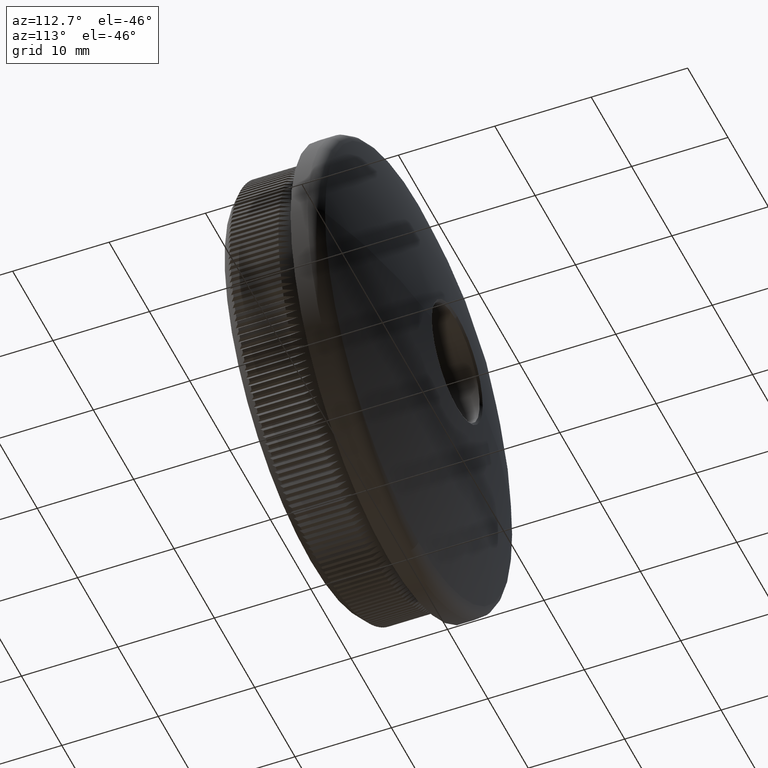
[diagram: clean part render]
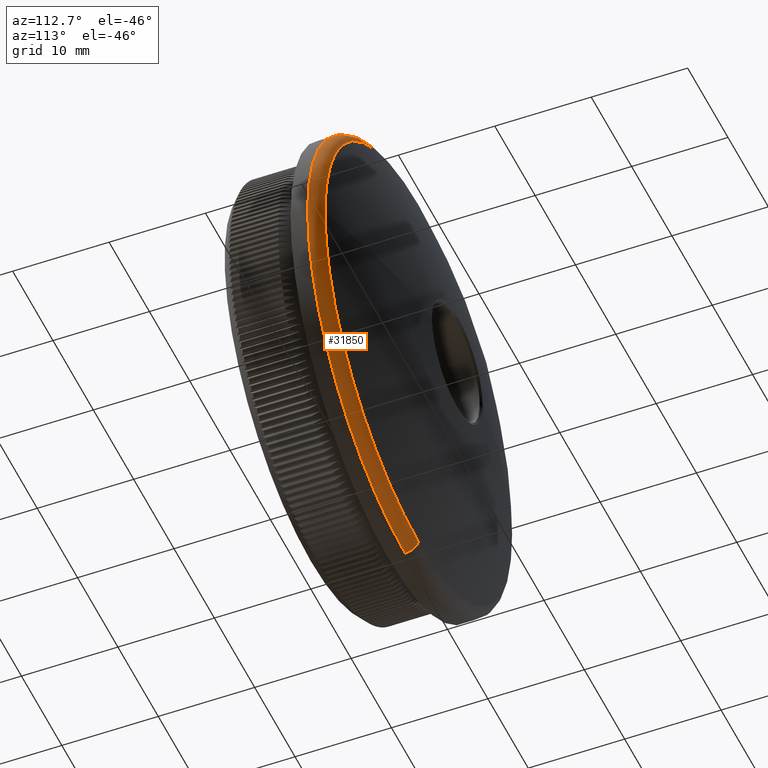
[diagram: same view with one face highlighted and labeled with its STEP entity id]
A machine part, auxiliary view. The second image highlights one B-rep face of the part: STEP entity #31850.
In plain terms, the highlighted toroidal blend (fillet) surface has major radius 22.65 mm and minor (blend) radius 1.5 mm.
Its self-contained STEP definition (entity closure, byte-faithful):
#22 = DIRECTION ( 'NONE',  ( 1.000000000000000000, 0.0000000000000000000, -1.224646799147353200E-016 ) ) ;
#752 = DIRECTION ( 'NONE',  ( 0.0000000000000000000, 0.0000000000000000000, -1.000000000000000000 ) ) ;
#1697 = CIRCLE ( 'NONE', #20802, 24.15000000000000200 ) ;
#1708 = CARTESIAN_POINT ( 'NONE',  ( 0.0000000000000000000, 11.17937736945556700, -23.19018648117216600 ) ) ;
#1823 = DIRECTION ( 'NONE',  ( 0.0000000000000000000, 0.0000000000000000000, -1.000000000000000000 ) ) ;
#1839 = CARTESIAN_POINT ( 'NONE',  ( 2.957522019940858300E-015, 9.780020886796899400, 24.15000000000000200 ) ) ;
#3131 = DIRECTION ( 'NONE',  ( -0.0000000000000000000, -1.000000000000000000, -0.0000000000000000000 ) ) ;
#3533 = CARTESIAN_POINT ( 'NONE',  ( 2.898750392260314800E-015, 11.17937736945556700, 23.19018648117216600 ) ) ;
#3653 = EDGE_CURVE ( 'NONE', #31719, #30174, #6099, .T. ) ;
#3811 = EDGE_CURVE ( 'NONE', #29290, #31719, #21934, .T. ) ;
#5849 = CARTESIAN_POINT ( 'NONE',  ( 0.0000000000000000000, 11.17937736945556700, 0.0000000000000000000 ) ) ;
#6099 = CIRCLE ( 'NONE', #24044, 1.500000000000001300 ) ;
#7274 = DIRECTION ( 'NONE',  ( -1.000000000000000000, 0.0000000000000000000, 0.0000000000000000000 ) ) ;
#7820 = EDGE_CURVE ( 'NONE', #19731, #29290, #30881, .T. ) ;
#8286 = VERTEX_POINT ( 'NONE', #1839 ) ;
#8506 = CARTESIAN_POINT ( 'NONE',  ( 0.0000000000000000000, 9.780020886796899400, 0.0000000000000000000 ) ) ;
#9870 = CIRCLE ( 'NONE', #11204, 1.500000000000001300 ) ;
#10790 = ORIENTED_EDGE ( 'NONE', *, *, #3653, .F. ) ;
#10814 = EDGE_CURVE ( 'NONE', #30174, #8286, #1697, .T. ) ;
#10952 = DIRECTION ( 'NONE',  ( 0.0000000000000000000, 0.0000000000000000000, -1.000000000000000000 ) ) ;
#11204 = AXIS2_PLACEMENT_3D ( 'NONE', #26601, #22, #13273 ) ;
#13273 = DIRECTION ( 'NONE',  ( -1.224646799147352000E-016, 0.0000000000000000000, -1.000000000000000000 ) ) ;
#14809 = DIRECTION ( 'NONE',  ( 0.0000000000000000000, 1.000000000000000000, 0.0000000000000000000 ) ) ;
#16680 = CARTESIAN_POINT ( 'NONE',  ( 0.0000000000000000000, 9.780020886796899400, -24.15000000000000200 ) ) ;
#17380 = AXIS2_PLACEMENT_3D ( 'NONE', #5849, #24456, #752 ) ;
#17981 = DIRECTION ( 'NONE',  ( 0.0000000000000000000, 0.0000000000000000000, 1.000000000000000000 ) ) ;
#19731 = VERTEX_POINT ( 'NONE', #3533 ) ;
#20444 = CARTESIAN_POINT ( 'NONE',  ( 0.0000000000000000000, 9.780020886796899400, 0.0000000000000000000 ) ) ;
#20802 = AXIS2_PLACEMENT_3D ( 'NONE', #8506, #3131, #10952 ) ;
#21175 = ORIENTED_EDGE ( 'NONE', *, *, #3811, .F. ) ;
#21592 = EDGE_LOOP ( 'NONE', ( #32749, #28840, #27815, #10790, #21175 ) ) ;
#21934 = CIRCLE ( 'NONE', #17380, 23.19018648117216600 ) ;
#22562 = AXIS2_PLACEMENT_3D ( 'NONE', #30736, #14809, #28397 ) ;
#22742 = FACE_OUTER_BOUND ( 'NONE', #21592, .T. ) ;
#23576 = CARTESIAN_POINT ( 'NONE',  ( 23.19018648117216600, 11.17937736945556400, 0.0000000000000000000 ) ) ;
#24044 = AXIS2_PLACEMENT_3D ( 'NONE', #31706, #7274, #17981 ) ;
#24122 = AXIS2_PLACEMENT_3D ( 'NONE', #20444, #34123, #1823 ) ;
#24456 = DIRECTION ( 'NONE',  ( 0.0000000000000000000, 1.000000000000000000, 0.0000000000000000000 ) ) ;
#26601 = CARTESIAN_POINT ( 'NONE',  ( 2.773825000068754800E-015, 9.780020886796899400, 22.64999999999999900 ) ) ;
#27815 = ORIENTED_EDGE ( 'NONE', *, *, #10814, .F. ) ;
#28397 = DIRECTION ( 'NONE',  ( 0.0000000000000000000, 0.0000000000000000000, -1.000000000000000000 ) ) ;
#28840 = ORIENTED_EDGE ( 'NONE', *, *, #30520, .T. ) ;
#29290 = VERTEX_POINT ( 'NONE', #23576 ) ;
#30174 = VERTEX_POINT ( 'NONE', #16680 ) ;
#30520 = EDGE_CURVE ( 'NONE', #19731, #8286, #9870, .T. ) ;
#30736 = CARTESIAN_POINT ( 'NONE',  ( 0.0000000000000000000, 11.17937736945556700, 0.0000000000000000000 ) ) ;
#30881 = CIRCLE ( 'NONE', #22562, 23.19018648117216600 ) ;
#31511 = TOROIDAL_SURFACE ( 'NONE', #24122, 22.64999999999999900, 1.500000000000000000 ) ;
#31706 = CARTESIAN_POINT ( 'NONE',  ( 0.0000000000000000000, 9.780020886796899400, -22.64999999999999900 ) ) ;
#31719 = VERTEX_POINT ( 'NONE', #1708 ) ;
#31850 = ADVANCED_FACE ( 'NONE', ( #22742 ), #31511, .T. ) ;
#32749 = ORIENTED_EDGE ( 'NONE', *, *, #7820, .F. ) ;
#34123 = DIRECTION ( 'NONE',  ( -0.0000000000000000000, -1.000000000000000000, -0.0000000000000000000 ) ) ;